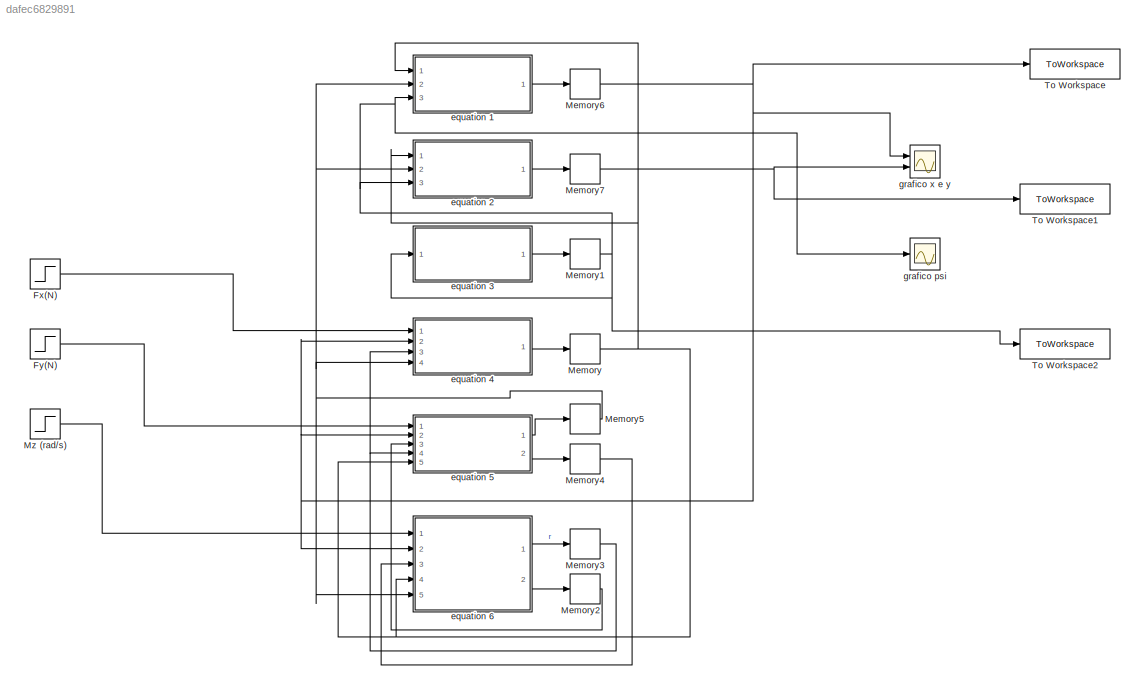
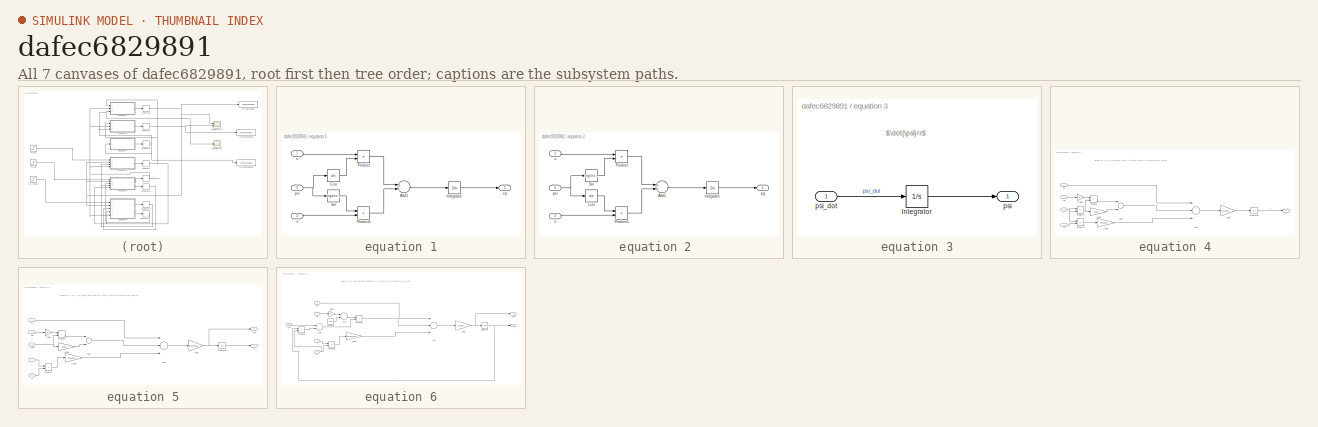
[diagram: thumbnail index - all 7 canvases of the model, root first then tree order]
MODEL slx_dafec6829891
KIND model
CONFIG AbsTol = auto
CONFIG FixedStep = auto
CONFIG MaxStep = auto
CONFIG MinStep = auto
CONFIG RelTol = 1e-3
CONFIG SampleTimeConstraint = Unconstrained
CONFIG Solver = VariableStepAuto
CONFIG SolverMode = SingleTasking
CONFIG SolverName = VariableStepAuto
CONFIG StartTime = 0.0
BLOCK [Step] Fx(N)
  After = fx
  SampleTime = 0
  Time = 0
BLOCK [Step] Fy(N)
  After = fy
  SampleTime = 0
  Time = 0
BLOCK [Memory] Memory
BLOCK [Memory] Memory1
BLOCK [Memory] Memory2
BLOCK [Memory] Memory3
BLOCK [Memory] Memory4
BLOCK [Memory] Memory5
BLOCK [Memory] Memory6
BLOCK [Memory] Memory7
BLOCK [Step] Mz (rad//s)
  After = mz
  SampleTime = 0
BLOCK [ToWorkspace] To Workspace
  FixptAsFi = on
  MaxDataPoints = inf
  Ports = [1]
  SampleTime = -1
  Save2DSignal = 3-D array (concatenate along third dimension)
  SaveFormat = Timeseries
  VariableName = xg_non_linear
BLOCK [ToWorkspace] To Workspace1
  FixptAsFi = on
  MaxDataPoints = inf
  Ports = [1]
  SampleTime = -1
  Save2DSignal = 3-D array (concatenate along third dimension)
  SaveFormat = Timeseries
  VariableName = yg_non_linear
BLOCK [ToWorkspace] To Workspace2
  FixptAsFi = on
  MaxDataPoints = inf
  Ports = [1]
  SampleTime = -1
  Save2DSignal = 3-D array (concatenate along third dimension)
  SaveFormat = Timeseries
  VariableName = psi_non_linear
BLOCK [SubSystem] equation 1
  Ports = [3, 1]
  RequestExecContextInheritance = off
  Variant = off
BLOCK [Sum] equation 1/Add1
  InputSameDT = off
  Inputs = +-
  OutDataTypeStr = Inherit: Inherit via internal rule
  Ports = [2, 1]
  SaturateOnIntegerOverflow = off
BLOCK [Trigonometry] equation 1/Cos
  Operator = cos
  Ports = [1, 1]
BLOCK [Integrator] equation 1/Integrator
  Ports = [1, 1]
BLOCK [Product] equation 1/Product
  InputSameDT = off
  OutDataTypeStr = Inherit: Inherit via internal rule
  Ports = [2, 1]
  RndMeth = Floor
  SaturateOnIntegerOverflow = off
BLOCK [Product] equation 1/Product1
  InputSameDT = off
  OutDataTypeStr = Inherit: Inherit via internal rule
  Ports = [2, 1]
  RndMeth = Floor
  SaturateOnIntegerOverflow = off
BLOCK [Trigonometry] equation 1/Sin
  Ports = [1, 1]
BLOCK [Inport] equation 1/psi
  IconDisplay = Port number
  Port = 3
BLOCK [Inport] equation 1/u
  IconDisplay = Port number
BLOCK [Inport] equation 1/v
  IconDisplay = Port number
  Port = 2
BLOCK [Outport] equation 1/xg
  IconDisplay = Port number
BLOCK [SubSystem] equation 2 
  Ports = [3, 1]
  RequestExecContextInheritance = off
  Variant = off
BLOCK [Sum] equation 2 /Add1
  InputSameDT = off
  OutDataTypeStr = Inherit: Inherit via internal rule
  Ports = [2, 1]
  SaturateOnIntegerOverflow = off
BLOCK [Trigonometry] equation 2 /Cos
  Operator = cos
  Ports = [1, 1]
BLOCK [Integrator] equation 2 /Integrator
  Ports = [1, 1]
BLOCK [Product] equation 2 /Product
  InputSameDT = off
  OutDataTypeStr = Inherit: Inherit via internal rule
  Ports = [2, 1]
  RndMeth = Floor
  SaturateOnIntegerOverflow = off
BLOCK [Product] equation 2 /Product1
  InputSameDT = off
  OutDataTypeStr = Inherit: Inherit via internal rule
  Ports = [2, 1]
  RndMeth = Floor
  SaturateOnIntegerOverflow = off
BLOCK [Trigonometry] equation 2 /Sin
  Ports = [1, 1]
BLOCK [Inport] equation 2 /psi
  IconDisplay = Port number
  Port = 3
BLOCK [Inport] equation 2 /u
  IconDisplay = Port number
BLOCK [Inport] equation 2 /v
  IconDisplay = Port number
  Port = 2
BLOCK [Outport] equation 2 /yg
  IconDisplay = Port number
BLOCK [SubSystem] equation 3
  Ports = [1, 1]
  RequestExecContextInheritance = off
  Variant = off
BLOCK [Integrator] equation 3/Integrator
  Ports = [1, 1]
BLOCK [Outport] equation 3/psi
  IconDisplay = Port number
BLOCK [Inport] equation 3/psi_dot
  IconDisplay = Port number
BLOCK [SubSystem] equation 4
  Ports = [4, 1]
  RequestExecContextInheritance = off
  Variant = off
BLOCK [Sum] equation 4/Add
  InputSameDT = off
  Inputs = +++
  OutDataTypeStr = Inherit: Inherit via internal rule
  Ports = [3, 1]
  SaturateOnIntegerOverflow = off
BLOCK [Sum] equation 4/Add1
  InputSameDT = off
  OutDataTypeStr = Inherit: Inherit via internal rule
  Ports = [2, 1]
  SaturateOnIntegerOverflow = off
BLOCK [Inport] equation 4/Fx
  IconDisplay = Port number
BLOCK [Gain] equation 4/Gain
  Gain = 1/(m+m11)
  OutDataTypeStr = Inherit: Inherit via internal rule
  ParamDataTypeStr = Inherit: Inherit via internal rule
  SaturateOnIntegerOverflow = off
BLOCK [Gain] equation 4/Gain1
  Gain = m
  OutDataTypeStr = Inherit: Inherit via internal rule
  ParamDataTypeStr = Inherit: Inherit via internal rule
  SaturateOnIntegerOverflow = off
BLOCK [Gain] equation 4/Gain2
  Gain = m26
  OutDataTypeStr = Inherit: Inherit via internal rule
  ParamDataTypeStr = Inherit: Inherit via internal rule
  SaturateOnIntegerOverflow = off
BLOCK [Gain] equation 4/Gain3
  Gain = m+m22
  OutDataTypeStr = Inherit: Inherit via internal rule
  ParamDataTypeStr = Inherit: Inherit via internal rule
  SaturateOnIntegerOverflow = off
BLOCK [Integrator] equation 4/Integrator
  Ports = [1, 1]
BLOCK [Product] equation 4/Product
  InputSameDT = off
  OutDataTypeStr = Inherit: Inherit via internal rule
  Ports = [2, 1]
  RndMeth = Floor
  SaturateOnIntegerOverflow = off
BLOCK [Product] equation 4/Product1
  InputSameDT = off
  OutDataTypeStr = Inherit: Inherit via internal rule
  Ports = [2, 1]
  RndMeth = Floor
  SaturateOnIntegerOverflow = off
BLOCK [Product] equation 4/Product2
  InputSameDT = off
  OutDataTypeStr = Inherit: Inherit via internal rule
  Ports = [2, 1]
  RndMeth = Floor
  SaturateOnIntegerOverflow = off
BLOCK [Inport] equation 4/r
  IconDisplay = Port number
  Port = 3
BLOCK [Outport] equation 4/u
  IconDisplay = Port number
BLOCK [Inport] equation 4/v
  IconDisplay = Port number
  Port = 4
BLOCK [Inport] equation 4/xg
  IconDisplay = Port number
  Port = 2
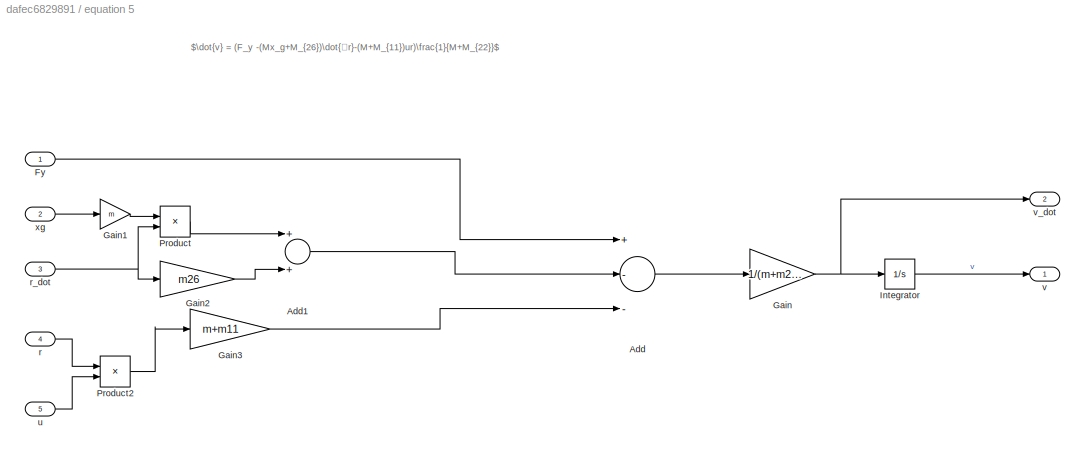
BLOCK [SubSystem] equation 5
  Ports = [5, 2]
  RequestExecContextInheritance = off
  Variant = off
BLOCK [Sum] equation 5/Add
  InputSameDT = off
  Inputs = +--
  OutDataTypeStr = Inherit: Inherit via internal rule
  Ports = [3, 1]
  SaturateOnIntegerOverflow = off
BLOCK [Sum] equation 5/Add1
  InputSameDT = off
  OutDataTypeStr = Inherit: Inherit via internal rule
  Ports = [2, 1]
  SaturateOnIntegerOverflow = off
BLOCK [Inport] equation 5/Fy
  IconDisplay = Port number
BLOCK [Gain] equation 5/Gain
  Gain = 1/(m+m22)
  OutDataTypeStr = Inherit: Inherit via internal rule
  ParamDataTypeStr = Inherit: Inherit via internal rule
  SaturateOnIntegerOverflow = off
BLOCK [Gain] equation 5/Gain1
  Gain = m
  OutDataTypeStr = Inherit: Inherit via internal rule
  ParamDataTypeStr = Inherit: Inherit via internal rule
  SaturateOnIntegerOverflow = off
BLOCK [Gain] equation 5/Gain2
  Gain = m26
  OutDataTypeStr = Inherit: Inherit via internal rule
  ParamDataTypeStr = Inherit: Inherit via internal rule
  SaturateOnIntegerOverflow = off
BLOCK [Gain] equation 5/Gain3
  Gain = m+m11
  OutDataTypeStr = Inherit: Inherit via internal rule
  ParamDataTypeStr = Inherit: Inherit via internal rule
  SaturateOnIntegerOverflow = off
BLOCK [Integrator] equation 5/Integrator
  Ports = [1, 1]
BLOCK [Product] equation 5/Product
  InputSameDT = off
  OutDataTypeStr = Inherit: Inherit via internal rule
  Ports = [2, 1]
  RndMeth = Floor
  SaturateOnIntegerOverflow = off
BLOCK [Product] equation 5/Product2
  InputSameDT = off
  OutDataTypeStr = Inherit: Inherit via internal rule
  Ports = [2, 1]
  RndMeth = Floor
  SaturateOnIntegerOverflow = off
BLOCK [Inport] equation 5/r
  IconDisplay = Port number
  Port = 4
BLOCK [Inport] equation 5/r_dot
  IconDisplay = Port number
  Port = 3
BLOCK [Inport] equation 5/u
  IconDisplay = Port number
  Port = 5
BLOCK [Outport] equation 5/v
  IconDisplay = Port number
BLOCK [Outport] equation 5/v_dot
  IconDisplay = Port number
  Port = 2
BLOCK [Inport] equation 5/xg
  IconDisplay = Port number
  Port = 2
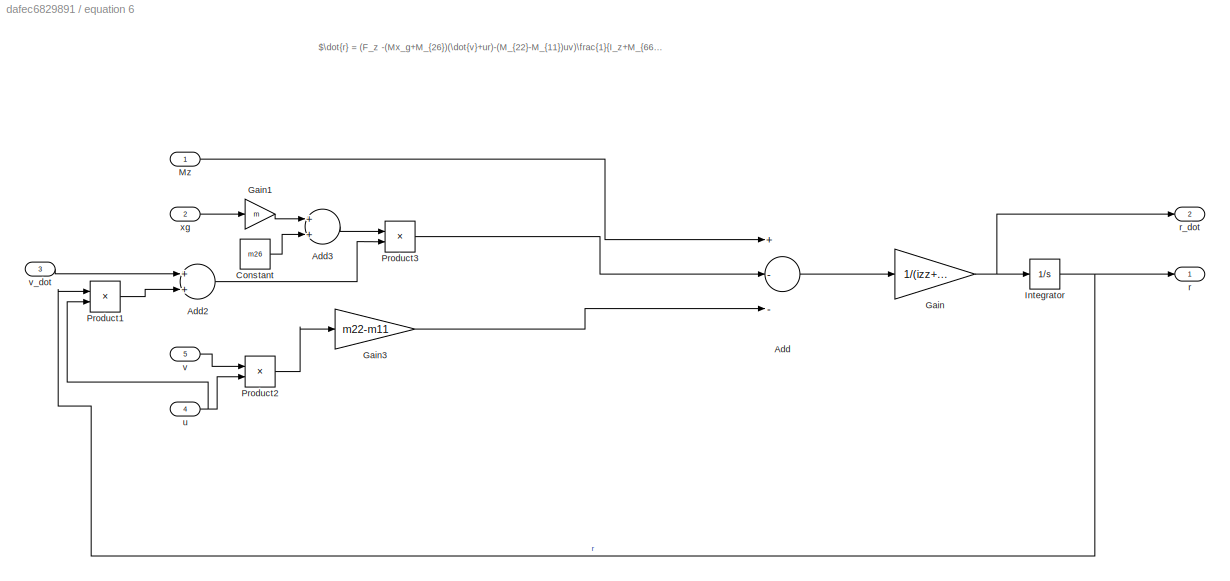
BLOCK [SubSystem] equation 6
  Ports = [5, 2]
  RequestExecContextInheritance = off
  Variant = off
BLOCK [Sum] equation 6/Add
  InputSameDT = off
  Inputs = +--
  OutDataTypeStr = Inherit: Inherit via internal rule
  Ports = [3, 1]
  SaturateOnIntegerOverflow = off
BLOCK [Sum] equation 6/Add2
  InputSameDT = off
  OutDataTypeStr = Inherit: Inherit via internal rule
  Ports = [2, 1]
  SaturateOnIntegerOverflow = off
BLOCK [Sum] equation 6/Add3
  InputSameDT = off
  OutDataTypeStr = Inherit: Inherit via internal rule
  Ports = [2, 1]
  SaturateOnIntegerOverflow = off
BLOCK [Constant] equation 6/Constant
  Value = m26
BLOCK [Gain] equation 6/Gain
  Gain = 1/(izz+m66)
  OutDataTypeStr = Inherit: Inherit via internal rule
  ParamDataTypeStr = Inherit: Inherit via internal rule
  SaturateOnIntegerOverflow = off
BLOCK [Gain] equation 6/Gain1
  Gain = m
  OutDataTypeStr = Inherit: Inherit via internal rule
  ParamDataTypeStr = Inherit: Inherit via internal rule
  SaturateOnIntegerOverflow = off
BLOCK [Gain] equation 6/Gain3
  Gain = m22-m11
  OutDataTypeStr = Inherit: Inherit via internal rule
  ParamDataTypeStr = Inherit: Inherit via internal rule
  SaturateOnIntegerOverflow = off
BLOCK [Integrator] equation 6/Integrator
  Ports = [1, 1]
BLOCK [Inport] equation 6/Mz
  IconDisplay = Port number
BLOCK [Product] equation 6/Product1
  InputSameDT = off
  OutDataTypeStr = Inherit: Inherit via internal rule
  Ports = [2, 1]
  RndMeth = Floor
  SaturateOnIntegerOverflow = off
BLOCK [Product] equation 6/Product2
  InputSameDT = off
  OutDataTypeStr = Inherit: Inherit via internal rule
  Ports = [2, 1]
  RndMeth = Floor
  SaturateOnIntegerOverflow = off
BLOCK [Product] equation 6/Product3
  InputSameDT = off
  OutDataTypeStr = Inherit: Inherit via internal rule
  Ports = [2, 1]
  RndMeth = Floor
  SaturateOnIntegerOverflow = off
BLOCK [Outport] equation 6/r
  IconDisplay = Port number
BLOCK [Outport] equation 6/r_dot
  IconDisplay = Port number
  Port = 2
BLOCK [Inport] equation 6/u
  IconDisplay = Port number
  Port = 4
BLOCK [Inport] equation 6/v
  IconDisplay = Port number
  Port = 5
BLOCK [Inport] equation 6/v_dot
  IconDisplay = Port number
  Port = 3
BLOCK [Inport] equation 6/xg
  IconDisplay = Port number
  Port = 2
BLOCK [Scope] grafico psi
  Ports = [1]
  ScopeSpecificationString = Simulink.scopes.TimeScopeBlockCfg('CurrentConfiguration', extmgr.ConfigurationSet(extmgr.Configuration('Core','General UI',true),extmgr.Configuration('Core','Source UI',true),extmgr.Configuration('Sources','WiredSimulink',true,'DataLoggingVariableName','ScopeData1'),extmgr.Configuration('Visuals','Time Domain',true,'SerializedDisplays',{struct('MinYLimReal','-1.00000','MaxYLimReal','1.00000','YLab...<+1369ch>
BLOCK [Scope] grafico x e y
  NumInputPorts = 2
  Ports = [2]
  ScopeSpecificationString = Simulink.scopes.TimeScopeBlockCfg('CurrentConfiguration', extmgr.ConfigurationSet(extmgr.Configuration('Core','General UI',true),extmgr.Configuration('Core','Source UI',true),extmgr.Configuration('Sources','WiredSimulink',true),extmgr.Configuration('Visuals','Time Domain',true,'SerializedDisplays',{struct('MinYLimReal','-0.19829','MaxYLimReal','1.78458','YLabelReal','','MinYLimMag','0.00000','MaxY...<+1375ch>
ANNOTATION equation 3: $\dot{\psi}=r$
ANNOTATION equation 4: $\dot{u} = (F_x +(Mx_g+M_{26})r^2+(M+M_{22})vr)\frac{1}{M+M_{11}}$
ANNOTATION equation 5: $\dot{v} = (F_y -(Mx_g+M_{26})\dot{�r}-(M+M_{11})ur)\frac{1}{M+M_{22}}$
ANNOTATION equation 6: $\dot{r} = (F_z -(Mx_g+M_{26})(\dot{v}+ur)-(M_{22}-M_{11})uv)\frac{1}{I_z+M_{66}}$
LINE Fx(N):1 -> equation 4:1
LINE Fy(N):1 -> equation 5:1
NET Memory1:1 -> To Workspace2:1, equation 1:3, equation 2 :3, equation 3:1, grafico psi:1
LINE Memory2:1 -> equation 5:3
NET Memory3:1 -> equation 4:3, equation 5:4
LINE Memory4:1 -> equation 6:3
NET Memory5:1 -> equation 1:2, equation 2 :2, equation 4:4, equation 6:5
NET Memory6:1 -> To Workspace:1, equation 4:2, equation 5:2, equation 6:2, grafico x e y:1
NET Memory7:1 -> To Workspace1:1, grafico x e y:2
NET Memory:1 -> equation 1:1, equation 2 :1, equation 5:5, equation 6:4
LINE Mz (rad//s):1 -> equation 6:1
LINE equation 1/Add1:1 -> equation 1/Integrator:1
LINE equation 1/Cos:1 -> equation 1/Product:2
LINE equation 1/Integrator:1 -> equation 1/xg:1
LINE equation 1/Product1:1 -> equation 1/Add1:2
LINE equation 1/Product:1 -> equation 1/Add1:1
LINE equation 1/Sin:1 -> equation 1/Product1:1
NET equation 1/psi:1 -> equation 1/Cos:1, equation 1/Sin:1
LINE equation 1/u:1 -> equation 1/Product:1
LINE equation 1/v:1 -> equation 1/Product1:2
LINE equation 1:1 -> Memory6:1
LINE equation 2 /Add1:1 -> equation 2 /Integrator:1
LINE equation 2 /Cos:1 -> equation 2 /Product1:1
LINE equation 2 /Integrator:1 -> equation 2 /yg:1
LINE equation 2 /Product1:1 -> equation 2 /Add1:2
LINE equation 2 /Product:1 -> equation 2 /Add1:1
LINE equation 2 /Sin:1 -> equation 2 /Product:2
NET equation 2 /psi:1 -> equation 2 /Cos:1, equation 2 /Sin:1
LINE equation 2 /u:1 -> equation 2 /Product:1
LINE equation 2 /v:1 -> equation 2 /Product1:2
LINE equation 2 :1 -> Memory7:1
LINE equation 3/Integrator:1 -> equation 3/psi:1
LINE equation 3/psi_dot:1 -> equation 3/Integrator:1
LINE equation 3:1 -> Memory1:1
LINE equation 4/Add1:1 -> equation 4/Add:2
LINE equation 4/Add:1 -> equation 4/Gain:1
LINE equation 4/Fx:1 -> equation 4/Add:1
LINE equation 4/Gain1:1 -> equation 4/Product:1
LINE equation 4/Gain2:1 -> equation 4/Add1:2
LINE equation 4/Gain3:1 -> equation 4/Add:3
LINE equation 4/Gain:1 -> equation 4/Integrator:1
LINE equation 4/Integrator:1 -> equation 4/u:1
NET equation 4/Product1:1 -> equation 4/Gain2:1, equation 4/Product:2
LINE equation 4/Product2:1 -> equation 4/Gain3:1
LINE equation 4/Product:1 -> equation 4/Add1:1
NET equation 4/r:1 -> equation 4/Product1:1, equation 4/Product1:2, equation 4/Product2:1
LINE equation 4/v:1 -> equation 4/Product2:2
LINE equation 4/xg:1 -> equation 4/Gain1:1
LINE equation 4:1 -> Memory:1
LINE equation 5/Add1:1 -> equation 5/Add:2
LINE equation 5/Add:1 -> equation 5/Gain:1
LINE equation 5/Fy:1 -> equation 5/Add:1
LINE equation 5/Gain1:1 -> equation 5/Product:1
LINE equation 5/Gain2:1 -> equation 5/Add1:2
LINE equation 5/Gain3:1 -> equation 5/Add:3
NET equation 5/Gain:1 -> equation 5/Integrator:1, equation 5/v_dot:1
LINE equation 5/Integrator:1 -> equation 5/v:1
LINE equation 5/Product2:1 -> equation 5/Gain3:1
LINE equation 5/Product:1 -> equation 5/Add1:1
LINE equation 5/r:1 -> equation 5/Product2:1
NET equation 5/r_dot:1 -> equation 5/Gain2:1, equation 5/Product:2
LINE equation 5/u:1 -> equation 5/Product2:2
LINE equation 5/xg:1 -> equation 5/Gain1:1
LINE equation 5:1 -> Memory5:1
LINE equation 5:2 -> Memory4:1
LINE equation 6/Add2:1 -> equation 6/Product3:2
LINE equation 6/Add3:1 -> equation 6/Product3:1
LINE equation 6/Add:1 -> equation 6/Gain:1
LINE equation 6/Constant:1 -> equation 6/Add3:2
LINE equation 6/Gain1:1 -> equation 6/Add3:1
LINE equation 6/Gain3:1 -> equation 6/Add:3
NET equation 6/Gain:1 -> equation 6/Integrator:1, equation 6/r_dot:1
NET equation 6/Integrator:1 -> equation 6/Product1:1, equation 6/r:1
LINE equation 6/Mz:1 -> equation 6/Add:1
LINE equation 6/Product1:1 -> equation 6/Add2:2
LINE equation 6/Product2:1 -> equation 6/Gain3:1
LINE equation 6/Product3:1 -> equation 6/Add:2
NET equation 6/u:1 -> equation 6/Product1:2, equation 6/Product2:2
LINE equation 6/v:1 -> equation 6/Product2:1
LINE equation 6/v_dot:1 -> equation 6/Add2:1
LINE equation 6/xg:1 -> equation 6/Gain1:1
LINE equation 6:1 -> Memory3:1
LINE equation 6:2 -> Memory2:1
note: NET lines group one-source signal fan-out (src -> all destinations, sorted); 1:1 wires keep LINE
